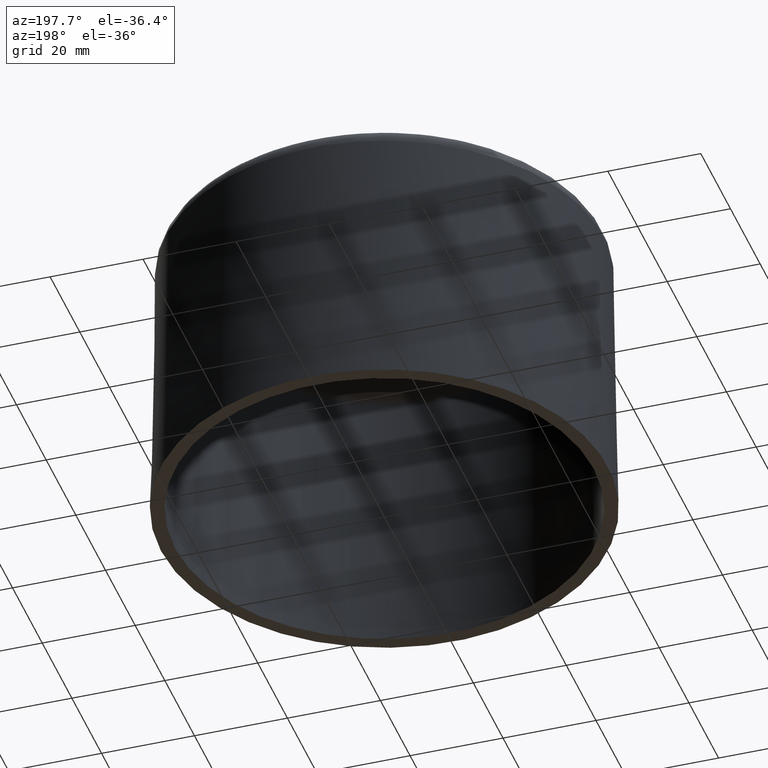
[diagram: clean part render]
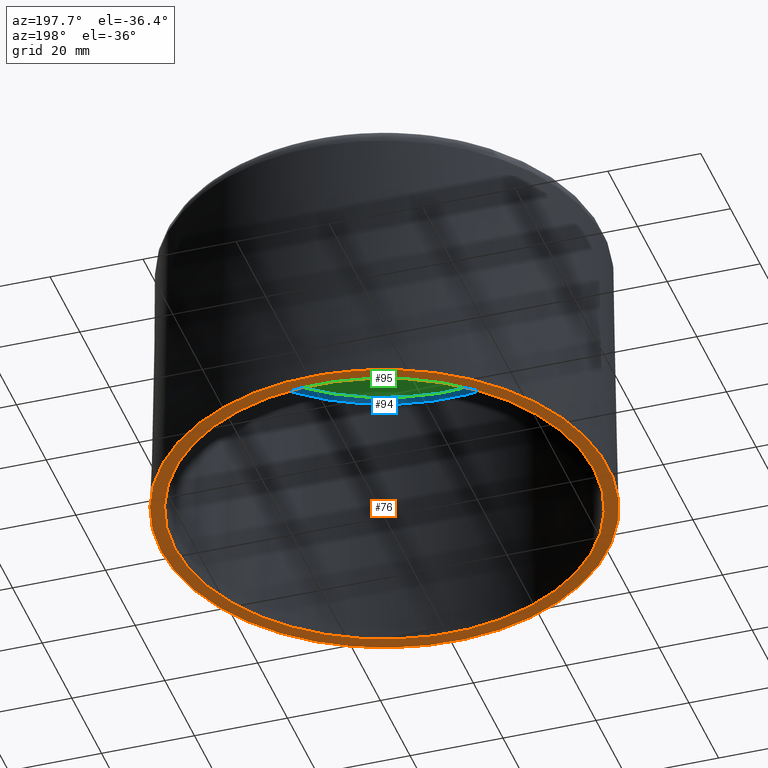
[diagram: same view with three faces highlighted in distinct colors, each labeled with its STEP entity id]
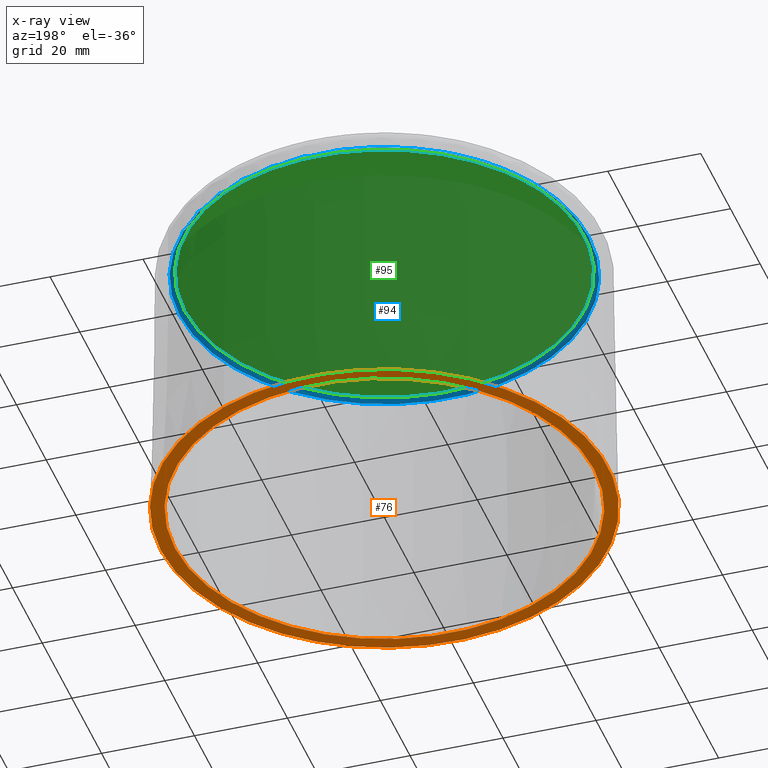
[diagram: x-ray of the same camera — body ghosted, the three highlighted faces saturated]
A machine part, auxiliary view with three faces highlighted in distinct colors.
The next image is the same camera in x-ray (body ghosted, the three faces saturated) — at least one of them is partly hidden behind the body in this view.
Their STEP definitions:

[orange] entity #76 — the highlighted planar face has unit normal (-0, 0, 1).
#76 = ADVANCED_FACE( '', ( #152, #153 ), #154, .F. );
#152 = FACE_OUTER_BOUND( '', #303, .T. );
#153 = FACE_BOUND( '', #304, .T. );
#154 = PLANE( '', #305 );
#303 = EDGE_LOOP( '', ( #501 ) );
#304 = EDGE_LOOP( '', ( #502 ) );
#305 = AXIS2_PLACEMENT_3D( '', #503, #504, #505 );
#501 = ORIENTED_EDGE( '', *, *, #1096, .F. );
#502 = ORIENTED_EDGE( '', *, *, #1097, .T. );
#503 = CARTESIAN_POINT( '', ( 1.27461203448362E-030, 45.0736519478465, -2.08166817117217E-014 ) );
#504 = DIRECTION( '', ( -6.12303176911189E-017, 0.000000000000000, 1.00000000000000 ) );
#505 = DIRECTION( '', ( 1.00000000000000, 0.000000000000000, 6.12303176911189E-017 ) );
#1096 = EDGE_CURVE( '', #1280, #1280, #1281, .T. );
#1097 = EDGE_CURVE( '', #1282, #1282, #1283, .T. );
#1280 = VERTEX_POINT( '', #1644 );
#1281 = CIRCLE( '', #1645, 48.0741089319783 );
#1282 = VERTEX_POINT( '', #1646 );
#1283 = CIRCLE( '', #1647, 45.0736519478465 );
#1644 = CARTESIAN_POINT( '', ( 48.0741089319783, 0.000000000000000, -2.48119826530064E-014 ) );
#1645 = AXIS2_PLACEMENT_3D( '', #2093, #2094, #2095 );
#1646 = CARTESIAN_POINT( '', ( 45.0736519478465, 0.000000000000000, -1.11179137795489E-014 ) );
#1647 = AXIS2_PLACEMENT_3D( '', #2096, #2097, #2098 );
#2093 = CARTESIAN_POINT( '', ( 1.69948271264483E-030, 0.000000000000000, -2.77555756156289E-014 ) );
#2094 = DIRECTION( '', ( -6.12303176911189E-017, 0.000000000000000, 1.00000000000000 ) );
#2095 = DIRECTION( '', ( 1.00000000000000, 0.000000000000000, 6.12303176911189E-017 ) );
#2096 = CARTESIAN_POINT( '', ( 8.49741356322415E-031, 0.000000000000000, -1.38777878078145E-014 ) );
#2097 = DIRECTION( '', ( -6.12303176911189E-017, 0.000000000000000, 1.00000000000000 ) );
#2098 = DIRECTION( '', ( 1.00000000000000, 0.000000000000000, 6.12303176911189E-017 ) );

[blue] entity #94 — the highlighted toroidal blend (fillet) surface has major radius 43.0437 mm and minor (blend) radius 1 mm.
#94 = ADVANCED_FACE( '', ( #196, #197 ), #198, .F. );
#196 = FACE_OUTER_BOUND( '', #354, .T. );
#197 = FACE_OUTER_BOUND( '', #355, .T. );
#198 = TOROIDAL_SURFACE( '', #356, 43.0436507890378, 1.00000000000000 );
#354 = EDGE_LOOP( '', ( #699 ) );
#355 = EDGE_LOOP( '', ( #700 ) );
#356 = AXIS2_PLACEMENT_3D( '', #701, #702, #703 );
#699 = ORIENTED_EDGE( '', *, *, #1126, .F. );
#700 = ORIENTED_EDGE( '', *, *, #1130, .T. );
#701 = CARTESIAN_POINT( '', ( -3.61258874377601E-015, 0.000000000000000, 59.0000000000000 ) );
#702 = DIRECTION( '', ( -6.12303176911189E-017, 0.000000000000000, 1.00000000000000 ) );
#703 = DIRECTION( '', ( 1.00000000000000, 0.000000000000000, 6.12303176911189E-017 ) );
#1126 = EDGE_CURVE( '', #1331, #1331, #1332, .T. );
#1130 = EDGE_CURVE( '', #1338, #1338, #1339, .T. );
#1331 = VERTEX_POINT( '', #1851 );
#1332 = CIRCLE( '', #1852, 44.0434984841942 );
#1338 = VERTEX_POINT( '', #1861 );
#1339 = CIRCLE( '', #1862, 43.0436507890378 );
#1851 = CARTESIAN_POINT( '', ( 44.0434984841942, 0.000000000000000, 59.0174524064373 ) );
#1852 = AXIS2_PLACEMENT_3D( '', #2112, #2113, #2114 );
#1861 = CARTESIAN_POINT( '', ( 43.0436507890378, 0.000000000000000, 60.0000000000000 ) );
#1862 = AXIS2_PLACEMENT_3D( '', #2118, #2119, #2120 );
#2112 = CARTESIAN_POINT( '', ( -3.61365736016664E-015, 0.000000000000000, 59.0174524064373 ) );
#2113 = DIRECTION( '', ( -6.12303176911189E-017, 0.000000000000000, 1.00000000000000 ) );
#2114 = DIRECTION( '', ( 1.00000000000000, 0.000000000000000, 6.12303176911189E-017 ) );
#2118 = CARTESIAN_POINT( '', ( -3.67381906146713E-015, 0.000000000000000, 60.0000000000000 ) );
#2119 = DIRECTION( '', ( -6.12303176911189E-017, 0.000000000000000, 1.00000000000000 ) );
#2120 = DIRECTION( '', ( 1.00000000000000, 0.000000000000000, 6.12303176911189E-017 ) );

[green] entity #95 — the highlighted planar face has unit normal (-0, 0, 1).
#95 = ADVANCED_FACE( '', ( #199 ), #200, .F. );
#199 = FACE_OUTER_BOUND( '', #357, .T. );
#200 = PLANE( '', #358 );
#357 = EDGE_LOOP( '', ( #704 ) );
#358 = AXIS2_PLACEMENT_3D( '', #705, #706, #707 );
#704 = ORIENTED_EDGE( '', *, *, #1130, .F. );
#705 = CARTESIAN_POINT( '', ( -3.67381906146713E-015, 0.000000000000000, 60.0000000000000 ) );
#706 = DIRECTION( '', ( -6.12303176911189E-017, 0.000000000000000, 1.00000000000000 ) );
#707 = DIRECTION( '', ( 1.00000000000000, 0.000000000000000, 6.12303176911189E-017 ) );
#1130 = EDGE_CURVE( '', #1338, #1338, #1339, .T. );
#1338 = VERTEX_POINT( '', #1861 );
#1339 = CIRCLE( '', #1862, 43.0436507890378 );
#1861 = CARTESIAN_POINT( '', ( 43.0436507890378, 0.000000000000000, 60.0000000000000 ) );
#1862 = AXIS2_PLACEMENT_3D( '', #2118, #2119, #2120 );
#2118 = CARTESIAN_POINT( '', ( -3.67381906146713E-015, 0.000000000000000, 60.0000000000000 ) );
#2119 = DIRECTION( '', ( -6.12303176911189E-017, 0.000000000000000, 1.00000000000000 ) );
#2120 = DIRECTION( '', ( 1.00000000000000, 0.000000000000000, 6.12303176911189E-017 ) );